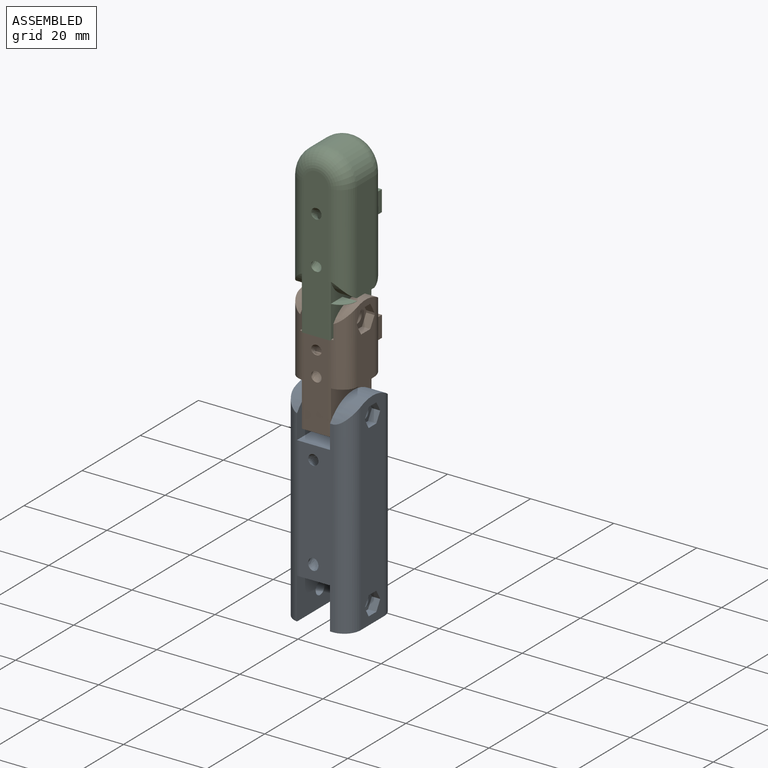
[diagram: assembled view]
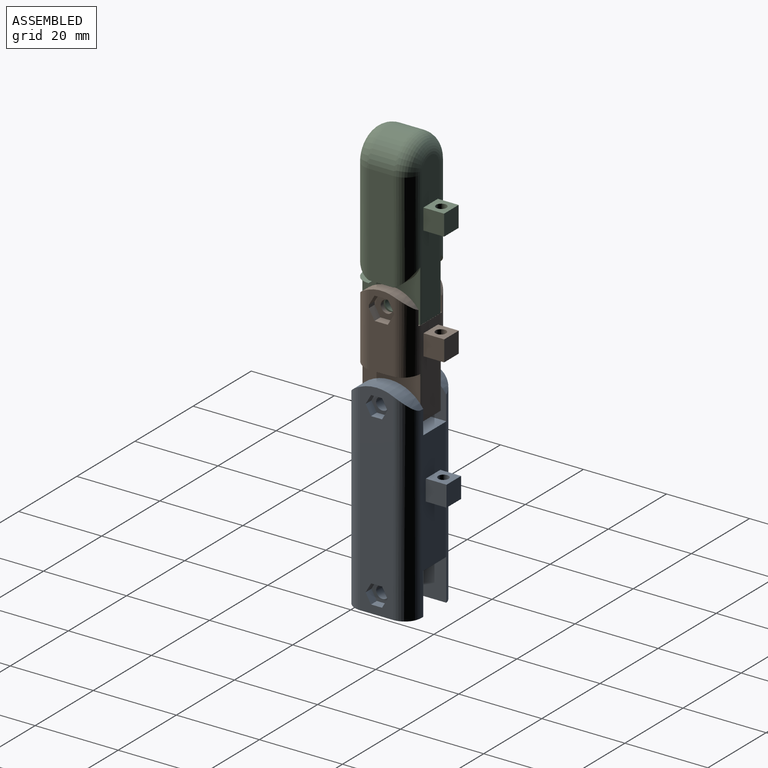
[diagram: assembled view, second angle]
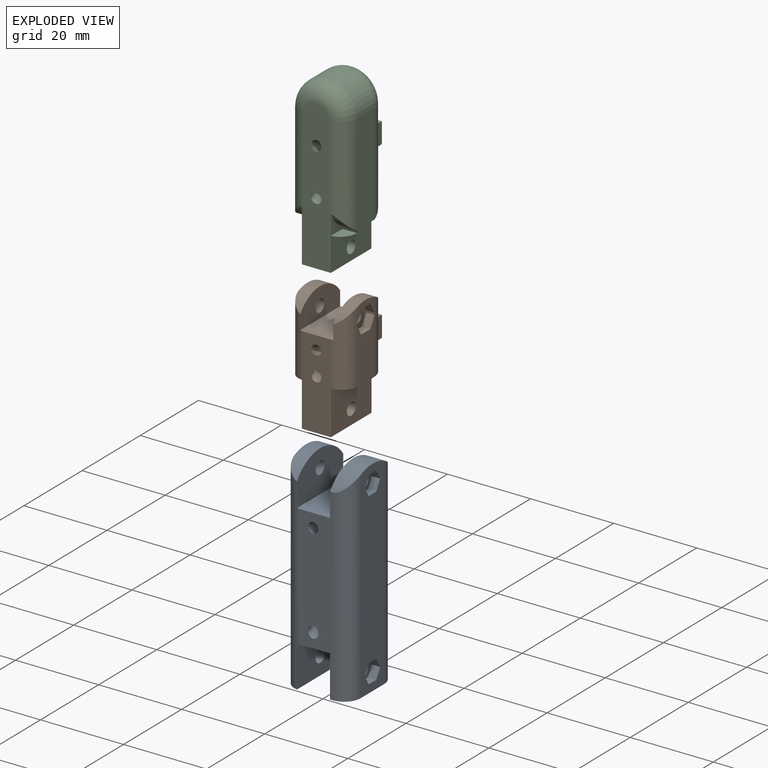
[diagram: exploded view]
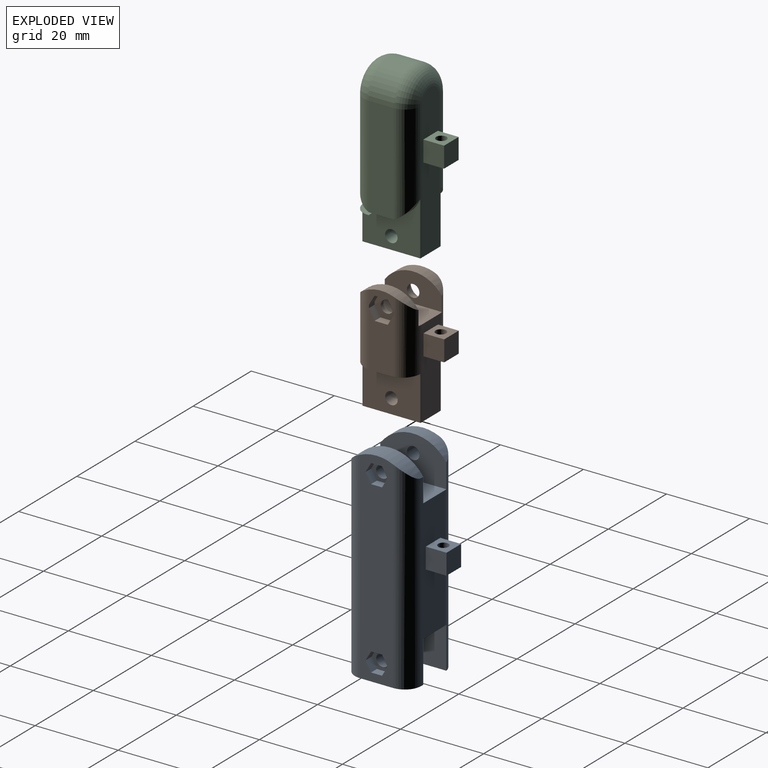
[diagram: exploded view, second angle]
ASSEMBLY  parts=3 mates=2
PART A: 43 faces, bbox 16.3x23x49.8 mm
  f0: plane 45.6x8.35mm, normal (0,-1,0), area 235.4mm2, adj f5,f7,f8,f11,f12,f13,f14,f20
  f1: plane 49.5x8mm, normal (1,0,0), area 357.2mm2, adj f8,f10,f13,f20,f22,f23,f24,f25
  f2: cylinder r=1.5mm len=3mm, axis (-1,0,0), area 24.7mm2, adj f5,f28
  f3: cylinder r=1.5mm len=3mm, axis (-1,0,0), area 24.7mm2, adj f12,f35
  f4: plane 49.5x8mm, normal (-1,0,0), area 379.6mm2, adj f7,f9,f15,f18,f19,f21
  f5: plane 16x10mm, normal (-1,0,0), area 132.7mm2, adj f0,f2,f14,f17,f20
  f6: plane 15.9x10mm, normal (1,0,0), area 132.2mm2, adj f7,f9,f14,f19,f21
  f7: cylinder r=4mm len=48.63mm, axis (0,0,1), area 284.2mm2, adj f0,f4,f6,f11,f14,f15,f16,f21
  f8: cylinder r=4mm len=48.63mm, axis (0,0,-1), area 293.7mm2, adj f0,f1,f13,f20
  f9: cylinder r=4mm len=48.63mm, axis (0,0,-1), area 284.2mm2, adj f4,f6,f11,f14,f15,f16,f17,f21
  f10: cylinder r=4mm len=48.63mm, axis (0,0,1), area 293.7mm2, adj f1,f13,f17,f20
  f11: plane 16x8mm, normal (0,0,-1), area 128mm2, adj f0,f7,f9,f12,f16,f17
  f12: plane 16x10mm, normal (-1,0,0), area 152.9mm2, adj f0,f3,f11,f13,f17
  f13: plane 16x4.63mm, normal (0,0,-1), area 67.1mm2, adj f0,f1,f8,f10,f12,f17
  f14: plane 16x8mm, normal (0,0,1), area 128mm2, adj f0,f5,f6,f7,f9,f17
  f15: plane 15.9x3.38mm, normal (0,0,-1), area 47.2mm2, adj f4,f7,f9,f16
  f16: plane 15.9x10mm, normal (1,0,0), area 151.9mm2, adj f7,f9,f11,f15,f18
  f17: plane 45.25x8mm, normal (0,1,0), area 220.8mm2, adj f5,f9,f10,f11,f12,f13,f14,f20
  f18: cylinder r=1.5mm len=3.38mm, axis (-1,0,0), area 31.8mm2, adj f4,f16
  f19: cylinder r=1.5mm len=3.38mm, axis (-1,0,0), area 31.8mm2, adj f4,f6
  f20: cylinder r=9.65mm len=16mm, axis (1,0,0), area 76.8mm2, adj f0,f1,f5,f8,f10,f17
  f21: cylinder r=9.65mm len=15.9mm, axis (1,0,0), area 53.3mm2, adj f4,f6,f7,f9
  f22: plane 2.3x2mm, normal (0,-0.87,-0.5), area 5.3mm2, adj f1,f23,f27,f28
  f23: plane 2.65x2mm, normal (0,0,-1), area 5.3mm2, adj f1,f22,f24,f28
  f24: plane 2.3x2mm, normal (0,0.87,-0.5), area 5.3mm2, adj f1,f23,f25,f28
  f25: plane 2.3x2mm, normal (0,0.87,0.5), area 5.3mm2, adj f1,f24,f26,f28
  f26: plane 2.65x2mm, normal (0,0,1), area 5.3mm2, adj f1,f25,f27,f28
  f27: plane 2.3x2mm, normal (0,-0.87,0.5), area 5.3mm2, adj f1,f22,f26,f28
  f28: plane 5.3x4.59mm, normal (1,0,0), area 11.2mm2, adj f2,f22,f23,f24,f25,f26,f27
  f29: plane 2.3x2mm, normal (0,-0.87,-0.5), area 5.3mm2, adj f1,f30,f34,f35
  f30: plane 2.65x2mm, normal (0,0,-1), area 5.3mm2, adj f1,f29,f31,f35
  f31: plane 2.3x2mm, normal (0,0.87,-0.5), area 5.3mm2, adj f1,f30,f32,f35
  f32: plane 2.3x2mm, normal (0,0.87,0.5), area 5.3mm2, adj f1,f31,f33,f35
  f33: plane 2.65x2mm, normal (0,0,1), area 5.3mm2, adj f1,f32,f34,f35
  f34: plane 2.3x2mm, normal (0,-0.87,0.5), area 5.3mm2, adj f1,f29,f33,f35
  f35: plane 5.3x4.59mm, normal (1,0,0), area 11.2mm2, adj f3,f29,f30,f31,f32,f33,f34
  f36: plane 5x5mm, normal (1,0,0), area 25mm2, adj f17,f37,f40,f41
  f37: plane 5x5mm, normal (0,1,0), area 25mm2, adj f36,f38,f40,f41
  f38: plane 5x5mm, normal (-1,0,0), area 25mm2, adj f17,f37,f40,f41
  f39: cylinder r=1.25mm len=5mm, axis (0,0,-1), area 39.3mm2, adj f40,f41
  f40: plane 5x5mm, normal (0,0,1), area 20.1mm2, adj f17,f36,f37,f38,f39
  f41: plane 5x5mm, normal (0,0,-1), area 20.1mm2, adj f17,f36,f37,f38,f39
  f42: bspline ~25.36x7.63mm, area 201.1mm2, adj f0
PART B: 43 faces, bbox 14x22.6x28.2 mm
  f0: plane 21.23x6mm, normal (0,-1,0), area 102.4mm2, adj f2,f6,f11,f14,f37,f40,f41,f42
  f1: plane 13.5x6mm, normal (-1,0,0), area 69.3mm2, adj f6,f7,f21,f22,f23,f34
  f2: cylinder r=4mm len=27.68mm, axis (0,0,-1), area 99.2mm2, adj f0,f5,f10,f11,f14,f15,f31,f32
  f3: cylinder r=4mm len=27.68mm, axis (0,0,1), area 99.2mm2, adj f5,f10,f11,f14,f15,f16,f31,f32
  f4: plane 13.75x7mm, normal (1,0,0), area 74.7mm2, adj f6,f7,f9,f11,f30
  f5: plane 13.75x7mm, normal (-1,0,0), area 74.7mm2, adj f2,f3,f11,f17,f31
  f6: cylinder r=4mm len=27.68mm, axis (0,0,1), area 99.3mm2, adj f0,f1,f4,f8,f11,f12,f13,f14
  f7: cylinder r=4mm len=27.68mm, axis (0,0,-1), area 99.2mm2, adj f1,f4,f8,f11,f13,f14,f16,f28
  f8: plane 6x4mm, normal (-1,0,0), area 11.4mm2, adj f6,f7,f25,f26,f27,f30
  f9: cylinder r=1.5mm len=3mm, axis (1,0,0), area 9.4mm2, adj f4,f29
  f10: plane 18x6mm, normal (1,0,0), area 83mm2, adj f2,f3,f19,f31,f32
  f11: plane 14x8mm, normal (0,0,1), area 111.8mm2, adj f0,f2,f3,f4,f5,f6,f7,f16
  f12: plane 0.09x0.01mm, normal (0,0,-1), area 0mm2, adj f6,f13,f33
  f13: plane 13.94x10.61mm, normal (-1,0,0), area 137.3mm2, adj f6,f7,f12,f14,f18,f33,f34
  f14: plane 14x7mm, normal (0,0,-1), area 98mm2, adj f0,f2,f3,f6,f7,f13,f15,f16
  f15: plane 13.94x10.61mm, normal (1,0,0), area 137.3mm2, adj f2,f3,f14,f18,f32
  f16: plane 21.23x6mm, normal (0,1,0), area 118mm2, adj f3,f7,f11,f14,f35,f36
  f17: cylinder r=1.5mm len=3mm, axis (1,0,0), area 9.4mm2, adj f5,f20
  f18: cylinder r=1.5mm len=7mm, axis (1,0,0), area 66mm2, adj f13,f15
  f19: cylinder r=2.75mm len=5.5mm, axis (1,0,0), area 34.6mm2, adj f10,f20
  f20: plane 5.5x5.5mm, normal (1,0,0), area 16.7mm2, adj f17,f19
  f21: plane 2.39x2mm, normal (0,-0.87,0.5), area 5.5mm2, adj f1,f22,f28,f29
  f22: plane 3.18x2mm, normal (0,0,1), area 6.4mm2, adj f1,f21,f23,f29
  f23: plane 2.5x2mm, normal (0,0.87,0.5), area 5.8mm2, adj f1,f22,f24,f29
  f24: plane 2x0.5mm, normal (0,1,0), area 1mm2, adj f6,f23,f25,f29
  f25: plane 2.5x2mm, normal (0,0.87,-0.5), area 5.8mm2, adj f8,f24,f26,f29
  f26: plane 3.18x2mm, normal (0,0,-1), area 6.4mm2, adj f8,f25,f27,f29
  f27: plane 2.39x2mm, normal (0,-0.87,-0.5), area 5.5mm2, adj f8,f26,f28,f29
  f28: plane 2x0.71mm, normal (0,-1,0), area 1.4mm2, adj f7,f21,f27,f29
  f29: plane 6x5.5mm, normal (-1,0,0), area 19mm2, adj f9,f21,f22,f23,f24,f25,f26,f27
  f30: cylinder r=8.5mm len=13.75mm, axis (1,0,0), area 33.2mm2, adj f4,f6,f7,f8
  f31: cylinder r=8.5mm len=13.75mm, axis (1,0,0), area 33.2mm2, adj f2,f3,f5,f10
  f32: cylinder r=63.81mm len=13.94mm, axis (1,0,0), area 34.9mm2, adj f2,f3,f10,f15
  f33: plane 0.4x0.1mm, normal (0,1,0.03), area 0mm2, adj f6,f12,f13
  f34: cylinder r=63.81mm len=13.94mm, axis (-1,0,0), area 34.9mm2, adj f1,f6,f7,f13
  f35: bspline ~2.5x2.27mm, area 1.4mm2, adj f16,f36
  f36: bspline ~10.23x7.64mm, area 53.8mm2, adj f16,f35
  f37: plane 5x5mm, normal (-1,0,0), area 25mm2, adj f0,f38,f41,f42
  f38: plane 5x5mm, normal (0,-1,0), area 25mm2, adj f37,f40,f41,f42
  f39: cylinder r=1.25mm len=5mm, axis (0,0,-1), area 39.3mm2, adj f41,f42
  f40: plane 5x5mm, normal (1,0,0), area 25mm2, adj f0,f38,f41,f42
  f41: plane 5x5mm, normal (0,0,1), area 20.1mm2, adj f0,f37,f38,f39,f40
  f42: plane 5x5mm, normal (0,0,-1), area 20.1mm2, adj f0,f37,f38,f39,f40
PART C: 33 faces, bbox 14.4x21.5x40.4 mm
  f0: plane 36.38x6.38mm, normal (0,1,0), area 202.6mm2, adj f6,f11,f12,f13,f31,f32
  f1: plane 36x6mm, normal (0,-1,0), area 187.1mm2, adj f4,f6,f14,f15,f25,f28,f29,f30
  f2: plane 24.27x6mm, normal (-1,0,0), area 145.6mm2, adj f4,f9,f12,f21,f22
  f3: plane 3.98x3.5mm, normal (0,0,-1), area 10.6mm2, adj f5,f10,f12,f24
  f4: cylinder r=4mm len=33mm, axis (0,0,1), area 145.3mm2, adj f1,f2,f5,f6,f15,f20,f21
  f5: plane 13.94x12.84mm, normal (-1,0,0), area 126.3mm2, adj f3,f4,f6,f12,f16,f20,f21,f22
  f6: plane 14x7mm, normal (0,0,-1), area 98mm2, adj f0,f1,f4,f5,f7,f11,f12,f14
  f7: plane 13.94x12.76mm, normal (1,0,0), area 125.6mm2, adj f6,f11,f14,f16,f17,f18,f19
  f8: plane 24.34x6mm, normal (1,0,0), area 146mm2, adj f9,f11,f14,f18
  f9: cylinder r=7mm len=14mm, axis (0,1,0), area 131.9mm2, adj f2,f8,f13,f15
  f10: plane 0.08x0.01mm, normal (-1,0,0), area 0mm2, adj f3,f12,f23,f24
  f11: cylinder r=4mm len=33mm, axis (0,0,1), area 145.4mm2, adj f0,f6,f7,f8,f13,f17
  f12: cylinder r=4mm len=33mm, axis (0,0,-1), area 145.7mm2, adj f0,f2,f3,f5,f6,f10,f13,f22
  f13: torus R=3mm, axis (0,-1,0), area 109.5mm2, adj f0,f9,f11,f12
  f14: cylinder r=4mm len=33mm, axis (0,0,-1), area 145.4mm2, adj f1,f6,f7,f8,f15,f19
  f15: torus R=3mm, axis (0,-1,0), area 109.5mm2, adj f1,f4,f9,f14
  f16: cylinder r=1.5mm len=7mm, axis (1,0,0), area 66mm2, adj f5,f7
  f17: cylinder r=7.5mm len=4.1mm, axis (1,0,0), area 14.3mm2, adj f7,f11,f18
  f18: plane 6x3.5mm, normal (0,0,-1), area 21mm2, adj f7,f8,f17,f19
  f19: cylinder r=7.5mm len=4.1mm, axis (1,0,0), area 14.3mm2, adj f7,f14,f18
  f20: cylinder r=7.5mm len=4.1mm, axis (-1,0,0), area 14.3mm2, adj f4,f5,f21
  f21: plane 6x3.5mm, normal (0,0,-1), area 21mm2, adj f2,f4,f5,f20,f22
  f22: cylinder r=7.5mm len=4.1mm, axis (-1,0,0), area 14.3mm2, adj f2,f5,f12,f21
  f23: plane 3.97x3.5mm, normal (0,0,1), area 10.6mm2, adj f5,f10,f12,f24
  f24: plane 3.5x0.08mm, normal (0,-0.99,0.16), area 0.3mm2, adj f3,f5,f10,f23
  f25: plane 5x5mm, normal (-1,0,0), area 25mm2, adj f1,f26,f29,f30
  f26: plane 5x5mm, normal (0,-1,0), area 25mm2, adj f25,f28,f29,f30
  f27: cylinder r=1.25mm len=5mm, axis (0,0,-1), area 39.3mm2, adj f29,f30
  f28: plane 5x5mm, normal (1,0,0), area 25mm2, adj f1,f26,f29,f30
  f29: plane 5x5mm, normal (0,0,1), area 20.1mm2, adj f1,f25,f26,f27,f28
  f30: plane 5x5mm, normal (0,0,-1), area 20.1mm2, adj f1,f25,f26,f27,f28
  f31: plane 0.69x0.04mm, normal (0,-0.53,0.85), area 0mm2, adj f0,f32
  f32: bspline ~13.88x5.97mm, area 100.5mm2, adj f0,f31
PLACE A t=(-0.08,-6.24,-21.14)mm fixed
PLACE B rot(axis=(0,0,-1),180deg) t=(-0.7,-21.24,9.98)mm
PLACE C rot(axis=(0,0,1),180deg) t=(-0.7,-14.27,37.34)mm
MATE revolute B.f18 <-> A.f2  axis (1,0,0) through (2.8,-14.24,-0.64)mm
MATE revolute C.f16 <-> B.f9  axis (1,0,0) through (2.8,-14.27,19.84)mm
